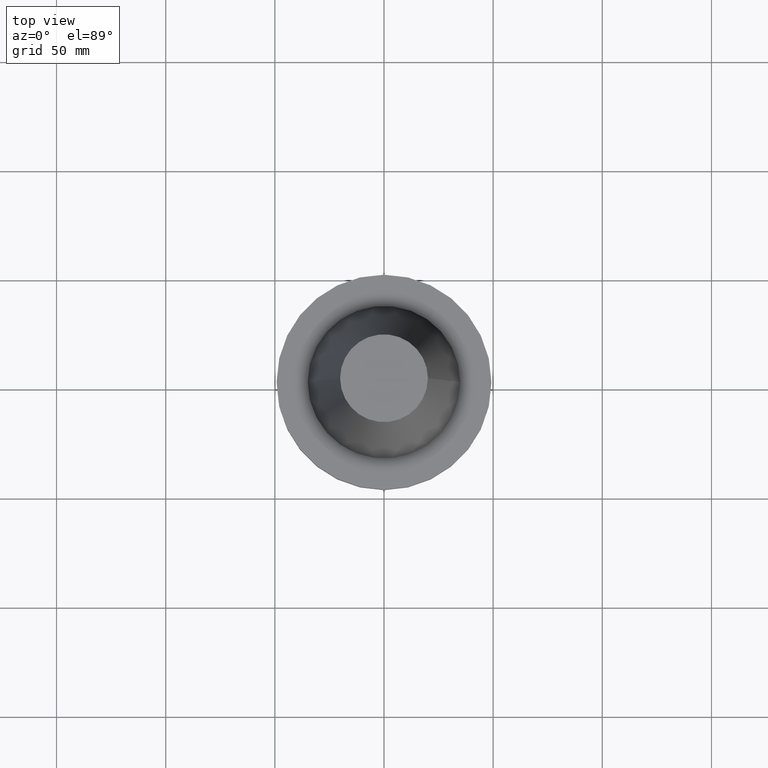
[diagram: clean part render]
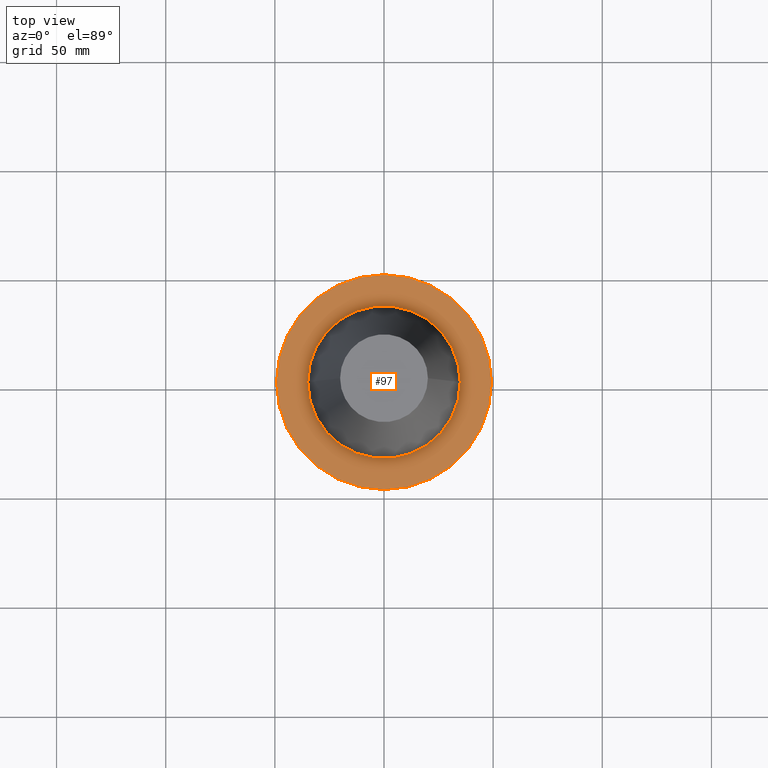
[diagram: same view with one face highlighted and labeled with its STEP entity id]
A machine part, top view. The second image highlights one B-rep face of the part: STEP entity #97.
In plain terms, the highlighted planar face has unit normal (0, 0, -1).
Its self-contained STEP definition (entity closure, byte-faithful):
#25 = DIRECTION ( 'NONE',  ( -0.000000000000000000, -0.000000000000000000, 1.000000000000000000 ) ) ;
#53 = DIRECTION ( 'NONE',  ( -0.000000000000000000, -0.000000000000000000, 1.000000000000000000 ) ) ;
#66 = CIRCLE ( 'NONE', #365, 49.21499999999999631 ) ;
#74 = CARTESIAN_POINT ( 'NONE',  ( 0.000000000000000000, 0.000000000000000000, -1.499999999999987566 ) ) ;
#97 = ADVANCED_FACE ( 'NONE', ( #211, #401 ), #454, .F. ) ;
#118 = AXIS2_PLACEMENT_3D ( 'NONE', #580, #691, #338 ) ;
#121 = CARTESIAN_POINT ( 'NONE',  ( -34.92499999999999005, 4.277078946022130098E-15, -1.499999999999987566 ) ) ;
#126 = CARTESIAN_POINT ( 'NONE',  ( 34.92499999999999005, 0.000000000000000000, -1.499999999999987566 ) ) ;
#151 = DIRECTION ( 'NONE',  ( 1.000000000000000000, 0.000000000000000000, 0.000000000000000000 ) ) ;
#164 = CIRCLE ( 'NONE', #758, 49.21499999999999631 ) ;
#170 = CARTESIAN_POINT ( 'NONE',  ( -49.21499999999999631, 6.027099222003697826E-15, -1.499999999999987566 ) ) ;
#195 = AXIS2_PLACEMENT_3D ( 'NONE', #594, #53, #302 ) ;
#211 = FACE_BOUND ( 'NONE', #394, .T. ) ;
#214 = CARTESIAN_POINT ( 'NONE',  ( 0.000000000000000000, 0.000000000000000000, -1.499999999999987566 ) ) ;
#218 = VERTEX_POINT ( 'NONE', #604 ) ;
#239 = VERTEX_POINT ( 'NONE', #121 ) ;
#250 = CIRCLE ( 'NONE', #648, 34.92499999999999005 ) ;
#302 = DIRECTION ( 'NONE',  ( 1.000000000000000000, 0.000000000000000000, 0.000000000000000000 ) ) ;
#324 = ORIENTED_EDGE ( 'NONE', *, *, #531, .T. ) ;
#336 = DIRECTION ( 'NONE',  ( 1.000000000000000000, 0.000000000000000000, 0.000000000000000000 ) ) ;
#338 = DIRECTION ( 'NONE',  ( -1.000000000000000000, 0.000000000000000000, -0.000000000000000000 ) ) ;
#365 = AXIS2_PLACEMENT_3D ( 'NONE', #214, #693, #151 ) ;
#394 = EDGE_LOOP ( 'NONE', ( #562, #406 ) ) ;
#401 = FACE_OUTER_BOUND ( 'NONE', #442, .T. ) ;
#406 = ORIENTED_EDGE ( 'NONE', *, *, #635, .F. ) ;
#423 = EDGE_CURVE ( 'NONE', #457, #239, #250, .T. ) ;
#442 = EDGE_LOOP ( 'NONE', ( #593, #324 ) ) ;
#453 = DIRECTION ( 'NONE',  ( -0.000000000000000000, -0.000000000000000000, 1.000000000000000000 ) ) ;
#454 = PLANE ( 'NONE',  #118 ) ;
#457 = VERTEX_POINT ( 'NONE', #126 ) ;
#519 = VERTEX_POINT ( 'NONE', #170 ) ;
#531 = EDGE_CURVE ( 'NONE', #519, #218, #164, .T. ) ;
#534 = CIRCLE ( 'NONE', #195, 34.92499999999999005 ) ;
#562 = ORIENTED_EDGE ( 'NONE', *, *, #423, .F. ) ;
#565 = EDGE_CURVE ( 'NONE', #218, #519, #66, .T. ) ;
#571 = CARTESIAN_POINT ( 'NONE',  ( 0.000000000000000000, 0.000000000000000000, -1.499999999999987566 ) ) ;
#580 = CARTESIAN_POINT ( 'NONE',  ( 0.000000000000000000, 49.21499999999999631, -1.499999999999992895 ) ) ;
#593 = ORIENTED_EDGE ( 'NONE', *, *, #565, .T. ) ;
#594 = CARTESIAN_POINT ( 'NONE',  ( 0.000000000000000000, 0.000000000000000000, -1.499999999999987566 ) ) ;
#604 = CARTESIAN_POINT ( 'NONE',  ( 49.21499999999999631, 0.000000000000000000, -1.499999999999987566 ) ) ;
#635 = EDGE_CURVE ( 'NONE', #239, #457, #534, .T. ) ;
#648 = AXIS2_PLACEMENT_3D ( 'NONE', #74, #25, #678 ) ;
#678 = DIRECTION ( 'NONE',  ( 1.000000000000000000, 0.000000000000000000, 0.000000000000000000 ) ) ;
#691 = DIRECTION ( 'NONE',  ( 0.000000000000000000, 0.000000000000000000, -1.000000000000000000 ) ) ;
#693 = DIRECTION ( 'NONE',  ( -0.000000000000000000, -0.000000000000000000, 1.000000000000000000 ) ) ;
#758 = AXIS2_PLACEMENT_3D ( 'NONE', #571, #453, #336 ) ;